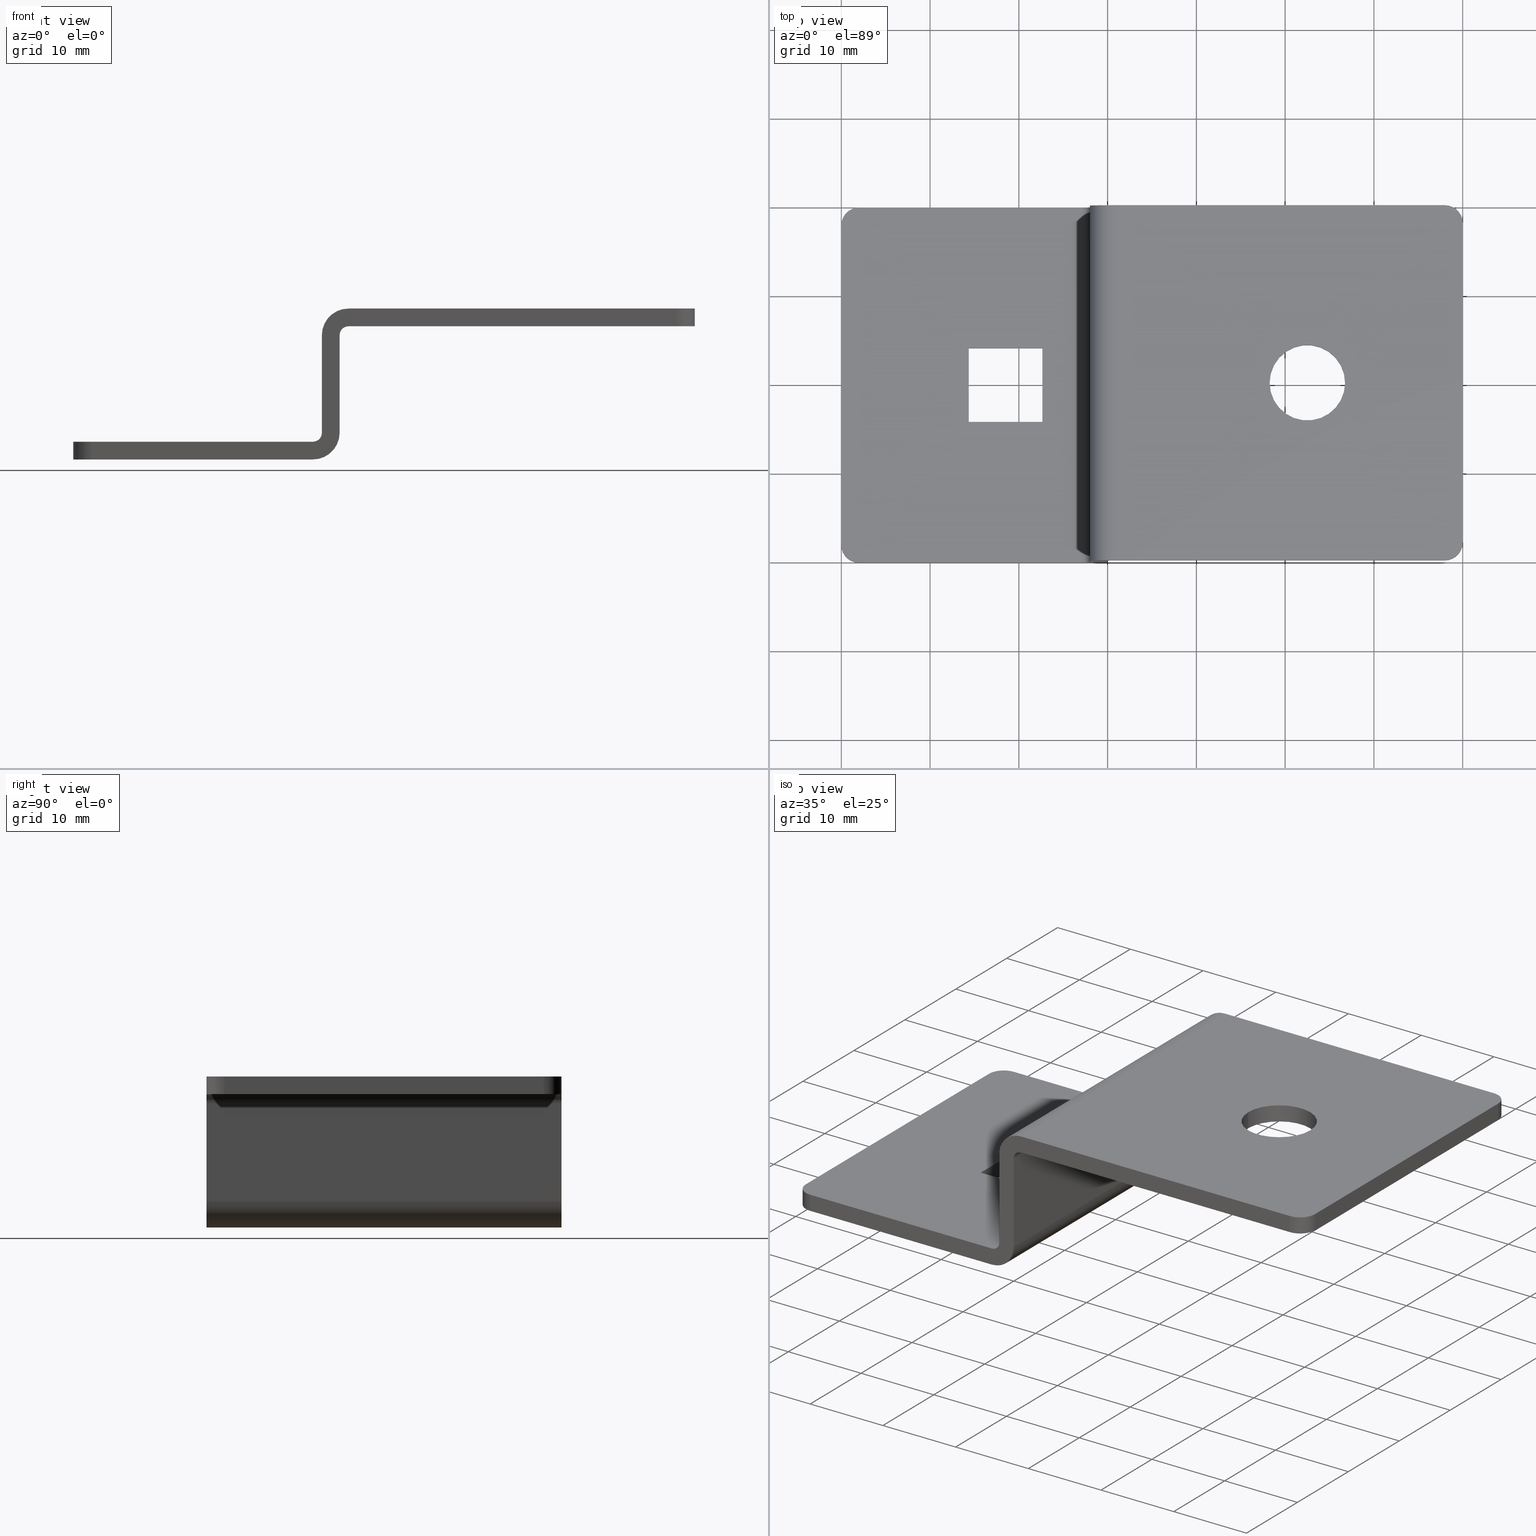
[diagram: canonical four-view strip — front | top / right | iso, engineering-drawing reading convention]
A machine part, canonical four-view strip (front | top / right | iso — engineering-drawing reading convention). The complete STEP part file that produces these views, byte-faithful:
ISO-10303-21;
HEADER;
/****************************************************************
 * Generated by software with PDE/Lib inside                    *
 * PDElib Version v4.4, created Mon 02/23/2004                  *
 * International Technegroup Inc. (www.iti-oh.com)              *
 ****************************************************************/
FILE_DESCRIPTION(('STEP AP203'),'2;1');
FILE_NAME('28.002.04.stp','2011-03-07T09:43:52',(''),(''),'2009.3.110','THINKDESIGN','');
FILE_SCHEMA(('CONFIG_CONTROL_DESIGN'));
ENDSEC;
DATA;
#2=CARTESIAN_POINT('',(-42.999999999827907,19.999999999919964,-13.999999999951855));
#3=DIRECTION('',(0.0,-1.0,6.123234E-017));
#4=DIRECTION('',(0.0,-6.123234E-017,-1.0));
#5=AXIS2_PLACEMENT_3D('',#2,#3,#4);
#6=CYLINDRICAL_SURFACE('',#5,2.999999999988035);
#7=CARTESIAN_POINT('',(-42.999999999827907,19.999999999919964,-16.999999999939888));
#8=VERTEX_POINT('',#7);
#9=CARTESIAN_POINT('',(-39.999999999839872,19.999999999919964,-13.999999999951855));
#10=VERTEX_POINT('',#9);
#11=CARTESIAN_POINT('',(-42.999999999827907,19.999999999919964,-13.999999999951855));
#12=DIRECTION('',(0.0,-1.0,6.123234E-017));
#13=DIRECTION('',(0.0,-6.123234E-017,-1.0));
#14=AXIS2_PLACEMENT_3D('',#11,#12,#13);
#15=CIRCLE('',#14,2.999999999988035);
#16=EDGE_CURVE('',#8,#10,#15,.T.);
#17=ORIENTED_EDGE('',*,*,#16,.T.);
#18=CARTESIAN_POINT('',(-39.999999999839872,-19.999999999919964,-13.999999999951852));
#19=VERTEX_POINT('',#18);
#20=CARTESIAN_POINT('',(-39.999999999839872,19.999999999919964,-13.999999999951855));
#21=DIRECTION('',(0.0,-1.0,0.0));
#22=VECTOR('',#21,39.999999999839929);
#23=LINE('',#20,#22);
#24=EDGE_CURVE('',#10,#19,#23,.T.);
#25=ORIENTED_EDGE('',*,*,#24,.T.);
#26=CARTESIAN_POINT('',(-42.999999999827907,-19.999999999919964,-16.999999999939888));
#27=VERTEX_POINT('',#26);
#28=CARTESIAN_POINT('',(-42.999999999827907,-19.999999999919964,-13.999999999951852));
#29=DIRECTION('',(0.0,-1.0,6.123234E-017));
#30=DIRECTION('',(0.0,-6.123234E-017,-1.0));
#31=AXIS2_PLACEMENT_3D('',#28,#29,#30);
#32=CIRCLE('',#31,2.999999999988035);
#33=EDGE_CURVE('',#27,#19,#32,.T.);
#34=ORIENTED_EDGE('',*,*,#33,.F.);
#35=CARTESIAN_POINT('',(-42.999999999827907,19.999999999919964,-16.999999999939888));
#36=DIRECTION('',(0.0,-1.0,0.0));
#37=VECTOR('',#36,39.999999999839929);
#38=LINE('',#35,#37);
#39=EDGE_CURVE('',#8,#27,#38,.T.);
#40=ORIENTED_EDGE('',*,*,#39,.F.);
#41=EDGE_LOOP('',(#17,#25,#34,#40));
#42=FACE_OUTER_BOUND('',#41,.T.);
#43=ADVANCED_FACE('',(#42),#6,.T.);
#44=CARTESIAN_POINT('',(-39.999999999839872,19.999999999919964,-13.999999999951855));
#45=DIRECTION('',(1.0,0.0,0.0));
#46=DIRECTION('',(0.0,0.0,1.0));
#47=AXIS2_PLACEMENT_3D('',#44,#45,#46);
#48=PLANE('',#47);
#49=CARTESIAN_POINT('',(-39.999999999839872,19.999999999919964,-2.999999999996363));
#50=VERTEX_POINT('',#49);
#51=CARTESIAN_POINT('',(-39.999999999839872,19.999999999919964,-13.999999999951855));
#52=DIRECTION('',(0.0,0.0,1.0));
#53=VECTOR('',#52,10.999999999955477);
#54=LINE('',#51,#53);
#55=EDGE_CURVE('',#10,#50,#54,.T.);
#56=ORIENTED_EDGE('',*,*,#55,.T.);
#57=CARTESIAN_POINT('',(-39.999999999839872,-19.999999999919964,-2.999999999996361));
#58=VERTEX_POINT('',#57);
#59=CARTESIAN_POINT('',(-39.999999999839872,19.999999999919964,-2.999999999996363));
#60=DIRECTION('',(0.0,-1.0,0.0));
#61=VECTOR('',#60,39.999999999839929);
#62=LINE('',#59,#61);
#63=EDGE_CURVE('',#50,#58,#62,.T.);
#64=ORIENTED_EDGE('',*,*,#63,.T.);
#65=CARTESIAN_POINT('',(-39.999999999839872,-19.999999999919964,-13.999999999951852));
#66=DIRECTION('',(0.0,0.0,1.0));
#67=VECTOR('',#66,10.999999999955477);
#68=LINE('',#65,#67);
#69=EDGE_CURVE('',#19,#58,#68,.T.);
#70=ORIENTED_EDGE('',*,*,#69,.F.);
#71=ORIENTED_EDGE('',*,*,#24,.F.);
#72=EDGE_LOOP('',(#56,#64,#70,#71));
#73=FACE_OUTER_BOUND('',#72,.T.);
#74=ADVANCED_FACE('',(#73),#48,.T.);
#75=CARTESIAN_POINT('',(-38.999999999843510,19.999999999919964,-2.999999999996363));
#76=DIRECTION('',(0.0,1.0,-6.123234E-017));
#77=DIRECTION('',(-1.0,7.498799E-033,1.224647E-016));
#78=AXIS2_PLACEMENT_3D('',#75,#76,#77);
#79=CYLINDRICAL_SURFACE('',#78,0.999999999996366);
#80=CARTESIAN_POINT('',(-38.999999999843510,19.999999999919964,-2.000000000000001));
#81=VERTEX_POINT('',#80);
#82=CARTESIAN_POINT('',(-38.999999999843510,19.999999999919964,-2.999999999996363));
#83=DIRECTION('',(0.0,1.0,-6.123234E-017));
#84=DIRECTION('',(1.0,0.0,0.0));
#85=AXIS2_PLACEMENT_3D('',#82,#83,#84);
#86=CIRCLE('',#85,0.999999999996366);
#87=EDGE_CURVE('',#50,#81,#86,.T.);
#88=ORIENTED_EDGE('',*,*,#87,.T.);
#89=CARTESIAN_POINT('',(-38.999999999843510,-19.999999999919964,-1.999999999999999));
#90=VERTEX_POINT('',#89);
#91=CARTESIAN_POINT('',(-38.999999999843510,19.999999999919964,-2.000000000000001));
#92=DIRECTION('',(0.0,-1.0,0.0));
#93=VECTOR('',#92,39.999999999839929);
#94=LINE('',#91,#93);
#95=EDGE_CURVE('',#81,#90,#94,.T.);
#96=ORIENTED_EDGE('',*,*,#95,.T.);
#97=CARTESIAN_POINT('',(-38.999999999843510,-19.999999999919964,-2.999999999996361));
#98=DIRECTION('',(0.0,1.0,-6.123234E-017));
#99=DIRECTION('',(1.0,0.0,0.0));
#100=AXIS2_PLACEMENT_3D('',#97,#98,#99);
#101=CIRCLE('',#100,0.999999999996366);
#102=EDGE_CURVE('',#58,#90,#101,.T.);
#103=ORIENTED_EDGE('',*,*,#102,.F.);
#104=ORIENTED_EDGE('',*,*,#63,.F.);
#105=EDGE_LOOP('',(#88,#96,#103,#104));
#106=FACE_OUTER_BOUND('',#105,.T.);
#107=ADVANCED_FACE('',(#106),#79,.F.);
#108=CARTESIAN_POINT('',(-38.999999999843510,19.999999999919964,-2.999999999996363));
#109=DIRECTION('',(0.0,-1.0,6.123234E-017));
#110=DIRECTION('',(1.0,0.0,0.0));
#111=AXIS2_PLACEMENT_3D('',#108,#109,#110);
#112=CYLINDRICAL_SURFACE('',#111,2.999999999996366);
#113=CARTESIAN_POINT('',(-38.999999999843510,19.999999999919964,-1.224647E-015));
#114=VERTEX_POINT('',#113);
#115=CARTESIAN_POINT('',(-41.999999999839872,19.999999999919964,-2.999999999996378));
#116=VERTEX_POINT('',#115);
#117=CARTESIAN_POINT('',(-38.999999999843510,19.999999999919964,-2.999999999996363));
#118=DIRECTION('',(0.0,-1.0,6.123234E-017));
#119=DIRECTION('',(1.0,0.0,0.0));
#120=AXIS2_PLACEMENT_3D('',#117,#118,#119);
#121=CIRCLE('',#120,2.999999999996366);
#122=EDGE_CURVE('',#114,#116,#121,.T.);
#123=ORIENTED_EDGE('',*,*,#122,.T.);
#124=CARTESIAN_POINT('',(-41.999999999839872,-19.999999999919964,-2.999999999996375));
#125=VERTEX_POINT('',#124);
#126=CARTESIAN_POINT('',(-41.999999999839872,19.999999999919964,-2.999999999996378));
#127=DIRECTION('',(0.0,-1.0,0.0));
#128=VECTOR('',#127,39.999999999839929);
#129=LINE('',#126,#128);
#130=EDGE_CURVE('',#116,#125,#129,.T.);
#131=ORIENTED_EDGE('',*,*,#130,.T.);
#132=CARTESIAN_POINT('',(-38.999999999843510,-19.999999999919964,1.224647E-015));
#133=VERTEX_POINT('',#132);
#134=CARTESIAN_POINT('',(-38.999999999843510,-19.999999999919964,-2.999999999996361));
#135=DIRECTION('',(0.0,-1.0,6.123234E-017));
#136=DIRECTION('',(1.0,0.0,0.0));
#137=AXIS2_PLACEMENT_3D('',#134,#135,#136);
#138=CIRCLE('',#137,2.999999999996366);
#139=EDGE_CURVE('',#133,#125,#138,.T.);
#140=ORIENTED_EDGE('',*,*,#139,.F.);
#141=CARTESIAN_POINT('',(-38.999999999843510,19.999999999919964,-1.224647E-015));
#142=DIRECTION('',(0.0,-1.0,0.0));
#143=VECTOR('',#142,39.999999999839929);
#144=LINE('',#141,#143);
#145=EDGE_CURVE('',#114,#133,#144,.T.);
#146=ORIENTED_EDGE('',*,*,#145,.F.);
#147=EDGE_LOOP('',(#123,#131,#140,#146));
#148=FACE_OUTER_BOUND('',#147,.T.);
#149=ADVANCED_FACE('',(#148),#112,.T.);
#150=CARTESIAN_POINT('',(-41.999999999839872,19.999999999919964,-2.999999999996378));
#151=DIRECTION('',(-1.0,0.0,0.0));
#152=DIRECTION('',(0.0,0.0,-1.0));
#153=AXIS2_PLACEMENT_3D('',#150,#151,#152);
#154=PLANE('',#153);
#155=CARTESIAN_POINT('',(-41.999999999839872,19.999999999919964,-13.999999999951855));
#156=VERTEX_POINT('',#155);
#157=CARTESIAN_POINT('',(-41.999999999839872,19.999999999919964,-2.999999999996378));
#158=DIRECTION('',(0.0,0.0,-1.0));
#159=VECTOR('',#158,10.999999999955477);
#160=LINE('',#157,#159);
#161=EDGE_CURVE('',#116,#156,#160,.T.);
#162=ORIENTED_EDGE('',*,*,#161,.T.);
#163=CARTESIAN_POINT('',(-41.999999999839872,-19.999999999919964,-13.999999999951852));
#164=VERTEX_POINT('',#163);
#165=CARTESIAN_POINT('',(-41.999999999839872,19.999999999919964,-13.999999999951855));
#166=DIRECTION('',(0.0,-1.0,0.0));
#167=VECTOR('',#166,39.999999999839929);
#168=LINE('',#165,#167);
#169=EDGE_CURVE('',#156,#164,#168,.T.);
#170=ORIENTED_EDGE('',*,*,#169,.T.);
#171=CARTESIAN_POINT('',(-41.999999999839872,-19.999999999919964,-2.999999999996375));
#172=DIRECTION('',(0.0,0.0,-1.0));
#173=VECTOR('',#172,10.999999999955477);
#174=LINE('',#171,#173);
#175=EDGE_CURVE('',#125,#164,#174,.T.);
#176=ORIENTED_EDGE('',*,*,#175,.F.);
#177=ORIENTED_EDGE('',*,*,#130,.F.);
#178=EDGE_LOOP('',(#162,#170,#176,#177));
#179=FACE_OUTER_BOUND('',#178,.T.);
#180=ADVANCED_FACE('',(#179),#154,.T.);
#181=CARTESIAN_POINT('',(-42.999999999827907,19.999999999919964,-13.999999999951855));
#182=DIRECTION('',(0.0,1.0,-6.123234E-017));
#183=DIRECTION('',(1.0,-1.232595E-032,-6.123234E-017));
#184=AXIS2_PLACEMENT_3D('',#181,#182,#183);
#185=CYLINDRICAL_SURFACE('',#184,0.999999999988034);
#186=CARTESIAN_POINT('',(-42.999999999827878,19.999999999919964,-14.999999999939890));
#187=VERTEX_POINT('',#186);
#188=CARTESIAN_POINT('',(-42.999999999827907,19.999999999919964,-13.999999999951855));
#189=DIRECTION('',(0.0,1.0,-6.123234E-017));
#190=DIRECTION('',(0.0,-6.123234E-017,-1.0));
#191=AXIS2_PLACEMENT_3D('',#188,#189,#190);
#192=CIRCLE('',#191,0.999999999988034);
#193=EDGE_CURVE('',#156,#187,#192,.T.);
#194=ORIENTED_EDGE('',*,*,#193,.T.);
#195=CARTESIAN_POINT('',(-42.999999999827878,-19.999999999919964,-14.999999999939886));
#196=VERTEX_POINT('',#195);
#197=CARTESIAN_POINT('',(-42.999999999827878,19.999999999919964,-14.999999999939890));
#198=DIRECTION('',(0.0,-1.0,0.0));
#199=VECTOR('',#198,39.999999999839929);
#200=LINE('',#197,#199);
#201=EDGE_CURVE('',#187,#196,#200,.T.);
#202=ORIENTED_EDGE('',*,*,#201,.T.);
#203=CARTESIAN_POINT('',(-42.999999999827907,-19.999999999919964,-13.999999999951852));
#204=DIRECTION('',(0.0,1.0,-6.123234E-017));
#205=DIRECTION('',(0.0,-6.123234E-017,-1.0));
#206=AXIS2_PLACEMENT_3D('',#203,#204,#205);
#207=CIRCLE('',#206,0.999999999988034);
#208=EDGE_CURVE('',#164,#196,#207,.T.);
#209=ORIENTED_EDGE('',*,*,#208,.F.);
#210=ORIENTED_EDGE('',*,*,#169,.F.);
#211=EDGE_LOOP('',(#194,#202,#209,#210));
#212=FACE_OUTER_BOUND('',#211,.T.);
#213=ADVANCED_FACE('',(#212),#185,.F.);
#214=CARTESIAN_POINT('',(-69.999999999720060,19.999999999919964,-16.999999999939888));
#215=DIRECTION('',(0.0,0.0,-1.0));
#216=DIRECTION('',(1.0,0.0,0.0));
#217=AXIS2_PLACEMENT_3D('',#214,#215,#216);
#218=PLANE('',#217);
#219=CARTESIAN_POINT('',(-67.999999999720060,19.999999999919964,-16.999999999939888));
#220=VERTEX_POINT('',#219);
#221=CARTESIAN_POINT('',(-67.999999999720060,19.999999999919964,-16.999999999939888));
#222=DIRECTION('',(1.0,0.0,0.0));
#223=VECTOR('',#222,24.999999999892182);
#224=LINE('',#221,#223);
#225=EDGE_CURVE('',#220,#8,#224,.T.);
#226=ORIENTED_EDGE('',*,*,#225,.T.);
#227=ORIENTED_EDGE('',*,*,#39,.T.);
#228=CARTESIAN_POINT('',(-67.999999999720060,-19.999999999919964,-16.999999999939888));
#229=VERTEX_POINT('',#228);
#230=CARTESIAN_POINT('',(-67.999999999720060,-19.999999999919964,-16.999999999939888));
#231=DIRECTION('',(1.0,0.0,0.0));
#232=VECTOR('',#231,24.999999999892182);
#233=LINE('',#230,#232);
#234=EDGE_CURVE('',#229,#27,#233,.T.);
#235=ORIENTED_EDGE('',*,*,#234,.F.);
#236=CARTESIAN_POINT('',(-69.999999999720060,-17.999999999919964,-16.999999999939888));
#237=VERTEX_POINT('',#236);
#238=CARTESIAN_POINT('',(-67.999999999720060,-17.999999999919964,-16.999999999939888));
#239=DIRECTION('',(0.0,6.123234E-017,1.0));
#240=DIRECTION('',(-1.0,0.0,0.0));
#241=AXIS2_PLACEMENT_3D('',#238,#239,#240);
#242=CIRCLE('',#241,2.0);
#243=EDGE_CURVE('',#237,#229,#242,.T.);
#244=ORIENTED_EDGE('',*,*,#243,.F.);
#245=CARTESIAN_POINT('',(-69.999999999720060,17.999999999919964,-16.999999999939888));
#246=VERTEX_POINT('',#245);
#247=CARTESIAN_POINT('',(-69.999999999720060,17.999999999919964,-16.999999999939888));
#248=DIRECTION('',(0.0,-1.0,0.0));
#249=VECTOR('',#248,35.999999999839929);
#250=LINE('',#247,#249);
#251=EDGE_CURVE('',#246,#237,#250,.T.);
#252=ORIENTED_EDGE('',*,*,#251,.F.);
#253=CARTESIAN_POINT('',(-67.999999999720060,17.999999999919964,-16.999999999939888));
#254=DIRECTION('',(0.0,-6.123234E-017,-1.0));
#255=DIRECTION('',(-1.0,0.0,0.0));
#256=AXIS2_PLACEMENT_3D('',#253,#254,#255);
#257=CIRCLE('',#256,2.0);
#258=EDGE_CURVE('',#246,#220,#257,.T.);
#259=ORIENTED_EDGE('',*,*,#258,.T.);
#260=EDGE_LOOP('',(#226,#227,#235,#244,#252,#259));
#261=FACE_OUTER_BOUND('',#260,.T.);
#262=CARTESIAN_POINT('',(-55.649999999777322,4.146153846137167,-16.999999999939888));
#263=VERTEX_POINT('',#262);
#264=CARTESIAN_POINT('',(-55.649999999777322,-4.153846153829364,-16.999999999939888));
#265=VERTEX_POINT('',#264);
#266=CARTESIAN_POINT('',(-55.649999999777322,4.146153846137167,-16.999999999939888));
#267=DIRECTION('',(0.0,-1.0,0.0));
#268=VECTOR('',#267,8.299999999966531);
#269=LINE('',#266,#268);
#270=EDGE_CURVE('',#263,#265,#269,.T.);
#271=ORIENTED_EDGE('',*,*,#270,.T.);
#272=CARTESIAN_POINT('',(-47.349999999810507,-4.153846153829364,-16.999999999939888));
#273=VERTEX_POINT('',#272);
#274=CARTESIAN_POINT('',(-55.649999999777322,-4.153846153829364,-16.999999999939888));
#275=DIRECTION('',(1.0,0.0,0.0));
#276=VECTOR('',#275,8.299999999966815);
#277=LINE('',#274,#276);
#278=EDGE_CURVE('',#265,#273,#277,.T.);
#279=ORIENTED_EDGE('',*,*,#278,.T.);
#280=CARTESIAN_POINT('',(-47.349999999810507,4.146153846137167,-16.999999999939888));
#281=VERTEX_POINT('',#280);
#282=CARTESIAN_POINT('',(-47.349999999810507,-4.153846153829364,-16.999999999939888));
#283=DIRECTION('',(0.0,1.0,0.0));
#284=VECTOR('',#283,8.299999999966531);
#285=LINE('',#282,#284);
#286=EDGE_CURVE('',#273,#281,#285,.T.);
#287=ORIENTED_EDGE('',*,*,#286,.T.);
#288=CARTESIAN_POINT('',(-55.649999999777322,4.146153846137167,-16.999999999939888));
#289=DIRECTION('',(1.0,0.0,0.0));
#290=VECTOR('',#289,8.299999999966815);
#291=LINE('',#288,#290);
#292=EDGE_CURVE('',#263,#281,#291,.T.);
#293=ORIENTED_EDGE('',*,*,#292,.F.);
#294=EDGE_LOOP('',(#271,#279,#287,#293));
#295=FACE_BOUND('',#294,.T.);
#296=ADVANCED_FACE('',(#261,#295),#218,.T.);
#297=CARTESIAN_POINT('',(-67.999999999720060,17.999999999919964,-14.999999999939890));
#298=DIRECTION('',(0.0,-6.123234E-017,-1.0));
#299=DIRECTION('',(-1.0,0.0,0.0));
#300=AXIS2_PLACEMENT_3D('',#297,#298,#299);
#301=CYLINDRICAL_SURFACE('',#300,2.0);
#302=CARTESIAN_POINT('',(-69.999999999720060,17.999999999919964,-14.999999999939890));
#303=VERTEX_POINT('',#302);
#304=CARTESIAN_POINT('',(-67.999999999720060,19.999999999919964,-14.999999999939890));
#305=VERTEX_POINT('',#304);
#306=CARTESIAN_POINT('',(-67.999999999720060,17.999999999919964,-14.999999999939890));
#307=DIRECTION('',(0.0,-6.123234E-017,-1.0));
#308=DIRECTION('',(-1.0,0.0,0.0));
#309=AXIS2_PLACEMENT_3D('',#306,#307,#308);
#310=CIRCLE('',#309,2.0);
#311=EDGE_CURVE('',#303,#305,#310,.T.);
#312=ORIENTED_EDGE('',*,*,#311,.T.);
#313=CARTESIAN_POINT('',(-67.999999999720060,19.999999999919964,-14.999999999939890));
#314=DIRECTION('',(0.0,0.0,-1.0));
#315=VECTOR('',#314,1.999999999999998);
#316=LINE('',#313,#315);
#317=EDGE_CURVE('',#305,#220,#316,.T.);
#318=ORIENTED_EDGE('',*,*,#317,.T.);
#319=ORIENTED_EDGE('',*,*,#258,.F.);
#320=CARTESIAN_POINT('',(-69.999999999720060,17.999999999919964,-14.999999999939890));
#321=DIRECTION('',(0.0,0.0,-1.0));
#322=VECTOR('',#321,1.999999999999998);
#323=LINE('',#320,#322);
#324=EDGE_CURVE('',#303,#246,#323,.T.);
#325=ORIENTED_EDGE('',*,*,#324,.F.);
#326=EDGE_LOOP('',(#312,#318,#319,#325));
#327=FACE_OUTER_BOUND('',#326,.T.);
#328=ADVANCED_FACE('',(#327),#301,.T.);
#329=CARTESIAN_POINT('',(-42.999999999827878,19.999999999919964,-14.999999999939890));
#330=DIRECTION('',(0.0,0.0,1.0));
#331=DIRECTION('',(-1.0,0.0,0.0));
#332=AXIS2_PLACEMENT_3D('',#329,#330,#331);
#333=PLANE('',#332);
#334=CARTESIAN_POINT('',(-42.999999999827878,19.999999999919964,-14.999999999939890));
#335=DIRECTION('',(-1.0,0.0,0.0));
#336=VECTOR('',#335,24.999999999892182);
#337=LINE('',#334,#336);
#338=EDGE_CURVE('',#187,#305,#337,.T.);
#339=ORIENTED_EDGE('',*,*,#338,.T.);
#340=ORIENTED_EDGE('',*,*,#311,.F.);
#341=CARTESIAN_POINT('',(-69.999999999720060,-17.999999999919964,-14.999999999939886));
#342=VERTEX_POINT('',#341);
#343=CARTESIAN_POINT('',(-69.999999999720060,17.999999999919964,-14.999999999939890));
#344=DIRECTION('',(0.0,-1.0,0.0));
#345=VECTOR('',#344,35.999999999839929);
#346=LINE('',#343,#345);
#347=EDGE_CURVE('',#303,#342,#346,.T.);
#348=ORIENTED_EDGE('',*,*,#347,.T.);
#349=CARTESIAN_POINT('',(-67.999999999720060,-19.999999999919964,-14.999999999939886));
#350=VERTEX_POINT('',#349);
#351=CARTESIAN_POINT('',(-67.999999999720060,-17.999999999919964,-14.999999999939886));
#352=DIRECTION('',(0.0,6.123234E-017,1.0));
#353=DIRECTION('',(-1.0,0.0,0.0));
#354=AXIS2_PLACEMENT_3D('',#351,#352,#353);
#355=CIRCLE('',#354,2.0);
#356=EDGE_CURVE('',#342,#350,#355,.T.);
#357=ORIENTED_EDGE('',*,*,#356,.T.);
#358=CARTESIAN_POINT('',(-42.999999999827878,-19.999999999919964,-14.999999999939886));
#359=DIRECTION('',(-1.0,0.0,0.0));
#360=VECTOR('',#359,24.999999999892182);
#361=LINE('',#358,#360);
#362=EDGE_CURVE('',#196,#350,#361,.T.);
#363=ORIENTED_EDGE('',*,*,#362,.F.);
#364=ORIENTED_EDGE('',*,*,#201,.F.);
#365=EDGE_LOOP('',(#339,#340,#348,#357,#363,#364));
#366=FACE_OUTER_BOUND('',#365,.T.);
#367=CARTESIAN_POINT('',(-55.649999999777322,4.146153846137167,-14.999999999939888));
#368=VERTEX_POINT('',#367);
#369=CARTESIAN_POINT('',(-47.349999999810507,4.146153846137167,-14.999999999939888));
#370=VERTEX_POINT('',#369);
#371=CARTESIAN_POINT('',(-55.649999999777322,4.146153846137167,-14.999999999939888));
#372=DIRECTION('',(1.0,0.0,0.0));
#373=VECTOR('',#372,8.299999999966815);
#374=LINE('',#371,#373);
#375=EDGE_CURVE('',#368,#370,#374,.T.);
#376=ORIENTED_EDGE('',*,*,#375,.T.);
#377=CARTESIAN_POINT('',(-47.349999999810507,-4.153846153829364,-14.999999999939888));
#378=VERTEX_POINT('',#377);
#379=CARTESIAN_POINT('',(-47.349999999810507,-4.153846153829364,-14.999999999939888));
#380=DIRECTION('',(0.0,1.0,0.0));
#381=VECTOR('',#380,8.299999999966531);
#382=LINE('',#379,#381);
#383=EDGE_CURVE('',#378,#370,#382,.T.);
#384=ORIENTED_EDGE('',*,*,#383,.F.);
#385=CARTESIAN_POINT('',(-55.649999999777322,-4.153846153829364,-14.999999999939888));
#386=VERTEX_POINT('',#385);
#387=CARTESIAN_POINT('',(-55.649999999777322,-4.153846153829364,-14.999999999939888));
#388=DIRECTION('',(1.0,0.0,0.0));
#389=VECTOR('',#388,8.299999999966815);
#390=LINE('',#387,#389);
#391=EDGE_CURVE('',#386,#378,#390,.T.);
#392=ORIENTED_EDGE('',*,*,#391,.F.);
#393=CARTESIAN_POINT('',(-55.649999999777322,4.146153846137167,-14.999999999939888));
#394=DIRECTION('',(0.0,-1.0,0.0));
#395=VECTOR('',#394,8.299999999966531);
#396=LINE('',#393,#395);
#397=EDGE_CURVE('',#368,#386,#396,.T.);
#398=ORIENTED_EDGE('',*,*,#397,.F.);
#399=EDGE_LOOP('',(#376,#384,#392,#398));
#400=FACE_BOUND('',#399,.T.);
#401=ADVANCED_FACE('',(#366,#400),#333,.T.);
#402=CARTESIAN_POINT('',(0.0,19.999999999919964,-1.224647E-015));
#403=DIRECTION('',(0.0,0.0,1.0));
#404=DIRECTION('',(-1.0,0.0,0.0));
#405=AXIS2_PLACEMENT_3D('',#402,#403,#404);
#406=PLANE('',#405);
#407=CARTESIAN_POINT('',(-2.0,19.999999999919964,-1.224647E-015));
#408=VERTEX_POINT('',#407);
#409=CARTESIAN_POINT('',(-2.0,19.999999999919964,-1.224647E-015));
#410=DIRECTION('',(-1.0,0.0,0.0));
#411=VECTOR('',#410,36.999999999843510);
#412=LINE('',#409,#411);
#413=EDGE_CURVE('',#408,#114,#412,.T.);
#414=ORIENTED_EDGE('',*,*,#413,.T.);
#415=ORIENTED_EDGE('',*,*,#145,.T.);
#416=CARTESIAN_POINT('',(-2.0,-19.999999999919964,1.224647E-015));
#417=VERTEX_POINT('',#416);
#418=CARTESIAN_POINT('',(-2.0,-19.999999999919964,1.224647E-015));
#419=DIRECTION('',(-1.0,0.0,0.0));
#420=VECTOR('',#419,36.999999999843510);
#421=LINE('',#418,#420);
#422=EDGE_CURVE('',#417,#133,#421,.T.);
#423=ORIENTED_EDGE('',*,*,#422,.F.);
#424=CARTESIAN_POINT('',(0.0,-17.999999999919964,1.102182E-015));
#425=VERTEX_POINT('',#424);
#426=CARTESIAN_POINT('',(-2.0,-17.999999999919964,1.102182E-015));
#427=DIRECTION('',(0.0,-6.123234E-017,-1.0));
#428=DIRECTION('',(1.0,0.0,0.0));
#429=AXIS2_PLACEMENT_3D('',#426,#427,#428);
#430=CIRCLE('',#429,2.0);
#431=EDGE_CURVE('',#425,#417,#430,.T.);
#432=ORIENTED_EDGE('',*,*,#431,.F.);
#433=CARTESIAN_POINT('',(0.0,17.999999999919964,-1.102182E-015));
#434=VERTEX_POINT('',#433);
#435=CARTESIAN_POINT('',(0.0,17.999999999919964,-1.102182E-015));
#436=DIRECTION('',(0.0,-1.0,0.0));
#437=VECTOR('',#436,35.999999999839929);
#438=LINE('',#435,#437);
#439=EDGE_CURVE('',#434,#425,#438,.T.);
#440=ORIENTED_EDGE('',*,*,#439,.F.);
#441=CARTESIAN_POINT('',(-2.0,17.999999999919964,-1.102182E-015));
#442=DIRECTION('',(0.0,6.123234E-017,1.0));
#443=DIRECTION('',(1.0,0.0,0.0));
#444=AXIS2_PLACEMENT_3D('',#441,#442,#443);
#445=CIRCLE('',#444,2.0);
#446=EDGE_CURVE('',#434,#408,#445,.T.);
#447=ORIENTED_EDGE('',*,*,#446,.T.);
#448=EDGE_LOOP('',(#414,#415,#423,#432,#440,#447));
#449=FACE_OUTER_BOUND('',#448,.T.);
#450=CARTESIAN_POINT('',(-13.249999999946965,0.0,0.0));
#451=VERTEX_POINT('',#450);
#452=CARTESIAN_POINT('',(-21.749999999912973,0.0,0.0));
#453=VERTEX_POINT('',#452);
#454=CARTESIAN_POINT('',(-17.499999999929969,0.0,0.0));
#455=DIRECTION('',(0.0,6.123234E-017,1.0));
#456=DIRECTION('',(-1.0,0.0,0.0));
#457=AXIS2_PLACEMENT_3D('',#454,#455,#456);
#458=CIRCLE('',#457,4.249999999983004);
#459=EDGE_CURVE('',#451,#453,#458,.T.);
#460=ORIENTED_EDGE('',*,*,#459,.F.);
#461=CARTESIAN_POINT('',(-17.499999999929969,0.0,0.0));
#462=DIRECTION('',(0.0,6.123234E-017,1.0));
#463=DIRECTION('',(-1.0,0.0,0.0));
#464=AXIS2_PLACEMENT_3D('',#461,#462,#463);
#465=CIRCLE('',#464,4.249999999983004);
#466=EDGE_CURVE('',#453,#451,#465,.T.);
#467=ORIENTED_EDGE('',*,*,#466,.F.);
#468=EDGE_LOOP('',(#460,#467));
#469=FACE_BOUND('',#468,.T.);
#470=ADVANCED_FACE('',(#449,#469),#406,.T.);
#471=CARTESIAN_POINT('',(-2.0,17.999999999919964,-2.000000000000001));
#472=DIRECTION('',(0.0,6.123234E-017,1.0));
#473=DIRECTION('',(1.0,0.0,0.0));
#474=AXIS2_PLACEMENT_3D('',#471,#472,#473);
#475=CYLINDRICAL_SURFACE('',#474,2.0);
#476=CARTESIAN_POINT('',(0.0,17.999999999919964,-2.000000000000001));
#477=VERTEX_POINT('',#476);
#478=CARTESIAN_POINT('',(-2.0,19.999999999919964,-2.000000000000001));
#479=VERTEX_POINT('',#478);
#480=CARTESIAN_POINT('',(-2.0,17.999999999919964,-2.000000000000001));
#481=DIRECTION('',(0.0,6.123234E-017,1.0));
#482=DIRECTION('',(1.0,0.0,0.0));
#483=AXIS2_PLACEMENT_3D('',#480,#481,#482);
#484=CIRCLE('',#483,2.0);
#485=EDGE_CURVE('',#477,#479,#484,.T.);
#486=ORIENTED_EDGE('',*,*,#485,.T.);
#487=CARTESIAN_POINT('',(-2.0,19.999999999919964,-2.000000000000001));
#488=DIRECTION('',(0.0,0.0,1.0));
#489=VECTOR('',#488,2.0);
#490=LINE('',#487,#489);
#491=EDGE_CURVE('',#479,#408,#490,.T.);
#492=ORIENTED_EDGE('',*,*,#491,.T.);
#493=ORIENTED_EDGE('',*,*,#446,.F.);
#494=CARTESIAN_POINT('',(0.0,17.999999999919964,-2.000000000000001));
#495=DIRECTION('',(0.0,0.0,1.0));
#496=VECTOR('',#495,2.0);
#497=LINE('',#494,#496);
#498=EDGE_CURVE('',#477,#434,#497,.T.);
#499=ORIENTED_EDGE('',*,*,#498,.F.);
#500=EDGE_LOOP('',(#486,#492,#493,#499));
#501=FACE_OUTER_BOUND('',#500,.T.);
#502=ADVANCED_FACE('',(#501),#475,.T.);
#503=CARTESIAN_POINT('',(-38.999999999843510,19.999999999919964,-2.000000000000001));
#504=DIRECTION('',(0.0,0.0,-1.0));
#505=DIRECTION('',(1.0,0.0,0.0));
#506=AXIS2_PLACEMENT_3D('',#503,#504,#505);
#507=PLANE('',#506);
#508=CARTESIAN_POINT('',(-38.999999999843510,19.999999999919964,-2.000000000000001));
#509=DIRECTION('',(1.0,0.0,0.0));
#510=VECTOR('',#509,36.999999999843510);
#511=LINE('',#508,#510);
#512=EDGE_CURVE('',#81,#479,#511,.T.);
#513=ORIENTED_EDGE('',*,*,#512,.T.);
#514=ORIENTED_EDGE('',*,*,#485,.F.);
#515=CARTESIAN_POINT('',(0.0,-17.999999999919964,-1.999999999999999));
#516=VERTEX_POINT('',#515);
#517=CARTESIAN_POINT('',(0.0,17.999999999919964,-2.000000000000001));
#518=DIRECTION('',(0.0,-1.0,0.0));
#519=VECTOR('',#518,35.999999999839929);
#520=LINE('',#517,#519);
#521=EDGE_CURVE('',#477,#516,#520,.T.);
#522=ORIENTED_EDGE('',*,*,#521,.T.);
#523=CARTESIAN_POINT('',(-2.0,-19.999999999919964,-1.999999999999999));
#524=VERTEX_POINT('',#523);
#525=CARTESIAN_POINT('',(-2.0,-17.999999999919964,-1.999999999999999));
#526=DIRECTION('',(0.0,-6.123234E-017,-1.0));
#527=DIRECTION('',(1.0,0.0,0.0));
#528=AXIS2_PLACEMENT_3D('',#525,#526,#527);
#529=CIRCLE('',#528,2.0);
#530=EDGE_CURVE('',#516,#524,#529,.T.);
#531=ORIENTED_EDGE('',*,*,#530,.T.);
#532=CARTESIAN_POINT('',(-38.999999999843510,-19.999999999919964,-1.999999999999999));
#533=DIRECTION('',(1.0,0.0,0.0));
#534=VECTOR('',#533,36.999999999843510);
#535=LINE('',#532,#534);
#536=EDGE_CURVE('',#90,#524,#535,.T.);
#537=ORIENTED_EDGE('',*,*,#536,.F.);
#538=ORIENTED_EDGE('',*,*,#95,.F.);
#539=EDGE_LOOP('',(#513,#514,#522,#531,#537,#538));
#540=FACE_OUTER_BOUND('',#539,.T.);
#541=CARTESIAN_POINT('',(-21.749999999912973,-1.224647E-016,-2.0));
#542=VERTEX_POINT('',#541);
#543=CARTESIAN_POINT('',(-13.249999999946965,-1.224647E-016,-2.0));
#544=VERTEX_POINT('',#543);
#545=CARTESIAN_POINT('',(-17.499999999929969,-1.224647E-016,-2.0));
#546=DIRECTION('',(0.0,6.123234E-017,1.0));
#547=DIRECTION('',(-1.0,0.0,0.0));
#548=AXIS2_PLACEMENT_3D('',#545,#546,#547);
#549=CIRCLE('',#548,4.249999999983004);
#550=EDGE_CURVE('',#542,#544,#549,.T.);
#551=ORIENTED_EDGE('',*,*,#550,.T.);
#552=CARTESIAN_POINT('',(-17.499999999929969,-1.224647E-016,-2.0));
#553=DIRECTION('',(0.0,6.123234E-017,1.0));
#554=DIRECTION('',(-1.0,0.0,0.0));
#555=AXIS2_PLACEMENT_3D('',#552,#553,#554);
#556=CIRCLE('',#555,4.249999999983004);
#557=EDGE_CURVE('',#544,#542,#556,.T.);
#558=ORIENTED_EDGE('',*,*,#557,.T.);
#559=EDGE_LOOP('',(#551,#558));
#560=FACE_BOUND('',#559,.T.);
#561=ADVANCED_FACE('',(#540,#560),#507,.T.);
#562=CARTESIAN_POINT('',(-2.0,-17.999999999919964,-1.999999999999999));
#563=DIRECTION('',(0.0,-6.123234E-017,-1.0));
#564=DIRECTION('',(1.0,0.0,0.0));
#565=AXIS2_PLACEMENT_3D('',#562,#563,#564);
#566=CYLINDRICAL_SURFACE('',#565,2.0);
#567=CARTESIAN_POINT('',(0.0,-17.999999999919964,-1.999999999999999));
#568=DIRECTION('',(0.0,0.0,1.0));
#569=VECTOR('',#568,2.0);
#570=LINE('',#567,#569);
#571=EDGE_CURVE('',#516,#425,#570,.T.);
#572=ORIENTED_EDGE('',*,*,#571,.T.);
#573=ORIENTED_EDGE('',*,*,#431,.T.);
#574=CARTESIAN_POINT('',(-2.0,-19.999999999919964,-1.999999999999999));
#575=DIRECTION('',(0.0,0.0,1.0));
#576=VECTOR('',#575,2.0);
#577=LINE('',#574,#576);
#578=EDGE_CURVE('',#524,#417,#577,.T.);
#579=ORIENTED_EDGE('',*,*,#578,.F.);
#580=ORIENTED_EDGE('',*,*,#530,.F.);
#581=EDGE_LOOP('',(#572,#573,#579,#580));
#582=FACE_OUTER_BOUND('',#581,.T.);
#583=ADVANCED_FACE('',(#582),#566,.T.);
#584=CARTESIAN_POINT('',(-67.999999999720060,-17.999999999919964,-14.999999999939886));
#585=DIRECTION('',(0.0,6.123234E-017,1.0));
#586=DIRECTION('',(-1.0,0.0,0.0));
#587=AXIS2_PLACEMENT_3D('',#584,#585,#586);
#588=CYLINDRICAL_SURFACE('',#587,2.0);
#589=CARTESIAN_POINT('',(-69.999999999720060,-17.999999999919964,-14.999999999939886));
#590=DIRECTION('',(0.0,0.0,-1.0));
#591=VECTOR('',#590,2.000000000000002);
#592=LINE('',#589,#591);
#593=EDGE_CURVE('',#342,#237,#592,.T.);
#594=ORIENTED_EDGE('',*,*,#593,.T.);
#595=ORIENTED_EDGE('',*,*,#243,.T.);
#596=CARTESIAN_POINT('',(-67.999999999720060,-19.999999999919964,-14.999999999939886));
#597=DIRECTION('',(0.0,0.0,-1.0));
#598=VECTOR('',#597,2.000000000000002);
#599=LINE('',#596,#598);
#600=EDGE_CURVE('',#350,#229,#599,.T.);
#601=ORIENTED_EDGE('',*,*,#600,.F.);
#602=ORIENTED_EDGE('',*,*,#356,.F.);
#603=EDGE_LOOP('',(#594,#595,#601,#602));
#604=FACE_OUTER_BOUND('',#603,.T.);
#605=ADVANCED_FACE('',(#604),#588,.T.);
#606=CARTESIAN_POINT('',(-77.000004724124679,19.999999999919964,1.700004724583805));
#607=DIRECTION('',(0.0,-1.0,0.0));
#608=DIRECTION('',(0.0,0.0,-1.0));
#609=AXIS2_PLACEMENT_3D('',#606,#607,#608);
#610=PLANE('',#609);
#611=ORIENTED_EDGE('',*,*,#225,.F.);
#612=ORIENTED_EDGE('',*,*,#317,.F.);
#613=ORIENTED_EDGE('',*,*,#338,.F.);
#614=ORIENTED_EDGE('',*,*,#193,.F.);
#615=ORIENTED_EDGE('',*,*,#161,.F.);
#616=ORIENTED_EDGE('',*,*,#122,.F.);
#617=ORIENTED_EDGE('',*,*,#413,.F.);
#618=ORIENTED_EDGE('',*,*,#491,.F.);
#619=ORIENTED_EDGE('',*,*,#512,.F.);
#620=ORIENTED_EDGE('',*,*,#87,.F.);
#621=ORIENTED_EDGE('',*,*,#55,.F.);
#622=ORIENTED_EDGE('',*,*,#16,.F.);
#623=EDGE_LOOP('',(#611,#612,#613,#614,#615,#616,#617,#618,#619,#620,#621,#622));
#624=FACE_OUTER_BOUND('',#623,.T.);
#625=ADVANCED_FACE('',(#624),#610,.F.);
#626=CARTESIAN_POINT('',(-69.999999999720060,19.999999999919964,-14.999999999939890));
#627=DIRECTION('',(-1.0,0.0,0.0));
#628=DIRECTION('',(0.0,0.0,-1.0));
#629=AXIS2_PLACEMENT_3D('',#626,#627,#628);
#630=PLANE('',#629);
#631=ORIENTED_EDGE('',*,*,#347,.F.);
#632=ORIENTED_EDGE('',*,*,#324,.T.);
#633=ORIENTED_EDGE('',*,*,#251,.T.);
#634=ORIENTED_EDGE('',*,*,#593,.F.);
#635=EDGE_LOOP('',(#631,#632,#633,#634));
#636=FACE_OUTER_BOUND('',#635,.T.);
#637=ADVANCED_FACE('',(#636),#630,.T.);
#638=CARTESIAN_POINT('',(0.0,19.999999999919964,-2.000000000000001));
#639=DIRECTION('',(1.0,0.0,0.0));
#640=DIRECTION('',(0.0,0.0,1.0));
#641=AXIS2_PLACEMENT_3D('',#638,#639,#640);
#642=PLANE('',#641);
#643=ORIENTED_EDGE('',*,*,#521,.F.);
#644=ORIENTED_EDGE('',*,*,#498,.T.);
#645=ORIENTED_EDGE('',*,*,#439,.T.);
#646=ORIENTED_EDGE('',*,*,#571,.F.);
#647=EDGE_LOOP('',(#643,#644,#645,#646));
#648=FACE_OUTER_BOUND('',#647,.T.);
#649=ADVANCED_FACE('',(#648),#642,.T.);
#650=CARTESIAN_POINT('',(-77.000004724124679,-19.999999999919964,1.700004724583808));
#651=DIRECTION('',(0.0,-1.0,0.0));
#652=DIRECTION('',(0.0,0.0,-1.0));
#653=AXIS2_PLACEMENT_3D('',#650,#651,#652);
#654=PLANE('',#653);
#655=ORIENTED_EDGE('',*,*,#33,.T.);
#656=ORIENTED_EDGE('',*,*,#69,.T.);
#657=ORIENTED_EDGE('',*,*,#102,.T.);
#658=ORIENTED_EDGE('',*,*,#536,.T.);
#659=ORIENTED_EDGE('',*,*,#578,.T.);
#660=ORIENTED_EDGE('',*,*,#422,.T.);
#661=ORIENTED_EDGE('',*,*,#139,.T.);
#662=ORIENTED_EDGE('',*,*,#175,.T.);
#663=ORIENTED_EDGE('',*,*,#208,.T.);
#664=ORIENTED_EDGE('',*,*,#362,.T.);
#665=ORIENTED_EDGE('',*,*,#600,.T.);
#666=ORIENTED_EDGE('',*,*,#234,.T.);
#667=EDGE_LOOP('',(#655,#656,#657,#658,#659,#660,#661,#662,#663,#664,#665,#666));
#668=FACE_OUTER_BOUND('',#667,.T.);
#669=ADVANCED_FACE('',(#668),#654,.T.);
#670=CARTESIAN_POINT('',(-55.649999999777322,4.146153846137166,-33.700029373108833));
#671=DIRECTION('',(-1.0,0.0,0.0));
#672=DIRECTION('',(0.0,-1.0,0.0));
#673=AXIS2_PLACEMENT_3D('',#670,#671,#672);
#674=PLANE('',#673);
#675=CARTESIAN_POINT('',(-55.649999999777322,4.146153846137167,-16.999999999939888));
#676=DIRECTION('',(0.0,0.0,1.0));
#677=VECTOR('',#676,2.0);
#678=LINE('',#675,#677);
#679=EDGE_CURVE('',#263,#368,#678,.T.);
#680=ORIENTED_EDGE('',*,*,#679,.T.);
#681=ORIENTED_EDGE('',*,*,#397,.T.);
#682=CARTESIAN_POINT('',(-55.649999999777322,-4.153846153829364,-16.999999999939888));
#683=DIRECTION('',(0.0,0.0,1.0));
#684=VECTOR('',#683,2.0);
#685=LINE('',#682,#684);
#686=EDGE_CURVE('',#265,#386,#685,.T.);
#687=ORIENTED_EDGE('',*,*,#686,.F.);
#688=ORIENTED_EDGE('',*,*,#270,.F.);
#689=EDGE_LOOP('',(#680,#681,#687,#688));
#690=FACE_OUTER_BOUND('',#689,.T.);
#691=ADVANCED_FACE('',(#690),#674,.F.);
#692=CARTESIAN_POINT('',(-55.649999999777322,-4.153846153829365,-33.700029373108833));
#693=DIRECTION('',(0.0,-1.0,0.0));
#694=DIRECTION('',(1.0,0.0,0.0));
#695=AXIS2_PLACEMENT_3D('',#692,#693,#694);
#696=PLANE('',#695);
#697=ORIENTED_EDGE('',*,*,#686,.T.);
#698=ORIENTED_EDGE('',*,*,#391,.T.);
#699=CARTESIAN_POINT('',(-47.349999999810507,-4.153846153829364,-16.999999999939888));
#700=DIRECTION('',(0.0,0.0,1.0));
#701=VECTOR('',#700,2.0);
#702=LINE('',#699,#701);
#703=EDGE_CURVE('',#273,#378,#702,.T.);
#704=ORIENTED_EDGE('',*,*,#703,.F.);
#705=ORIENTED_EDGE('',*,*,#278,.F.);
#706=EDGE_LOOP('',(#697,#698,#704,#705));
#707=FACE_OUTER_BOUND('',#706,.T.);
#708=ADVANCED_FACE('',(#707),#696,.F.);
#709=CARTESIAN_POINT('',(-47.349999999810507,-4.153846153829365,-33.700029373108833));
#710=DIRECTION('',(1.0,0.0,0.0));
#711=DIRECTION('',(0.0,1.0,0.0));
#712=AXIS2_PLACEMENT_3D('',#709,#710,#711);
#713=PLANE('',#712);
#714=ORIENTED_EDGE('',*,*,#703,.T.);
#715=ORIENTED_EDGE('',*,*,#383,.T.);
#716=CARTESIAN_POINT('',(-47.349999999810507,4.146153846137167,-16.999999999939888));
#717=DIRECTION('',(0.0,0.0,1.0));
#718=VECTOR('',#717,2.0);
#719=LINE('',#716,#718);
#720=EDGE_CURVE('',#281,#370,#719,.T.);
#721=ORIENTED_EDGE('',*,*,#720,.F.);
#722=ORIENTED_EDGE('',*,*,#286,.F.);
#723=EDGE_LOOP('',(#714,#715,#721,#722));
#724=FACE_OUTER_BOUND('',#723,.T.);
#725=ADVANCED_FACE('',(#724),#713,.F.);
#726=CARTESIAN_POINT('',(-47.349999999810507,4.146153846137166,-33.700029373108833));
#727=DIRECTION('',(0.0,1.0,0.0));
#728=DIRECTION('',(-1.0,0.0,0.0));
#729=AXIS2_PLACEMENT_3D('',#726,#727,#728);
#730=PLANE('',#729);
#731=ORIENTED_EDGE('',*,*,#292,.T.);
#732=ORIENTED_EDGE('',*,*,#720,.T.);
#733=ORIENTED_EDGE('',*,*,#375,.F.);
#734=ORIENTED_EDGE('',*,*,#679,.F.);
#735=EDGE_LOOP('',(#731,#732,#733,#734));
#736=FACE_OUTER_BOUND('',#735,.T.);
#737=ADVANCED_FACE('',(#736),#730,.F.);
#738=CARTESIAN_POINT('',(-17.499999999929969,0.0,0.0));
#739=DIRECTION('',(0.0,6.123234E-017,1.0));
#740=DIRECTION('',(-1.0,0.0,0.0));
#741=AXIS2_PLACEMENT_3D('',#738,#739,#740);
#742=CYLINDRICAL_SURFACE('',#741,4.249999999983004);
#743=CARTESIAN_POINT('',(-21.749999999912973,0.0,0.0));
#744=DIRECTION('',(0.0,0.0,-1.0));
#745=VECTOR('',#744,2.0);
#746=LINE('',#743,#745);
#747=EDGE_CURVE('',#453,#542,#746,.T.);
#748=ORIENTED_EDGE('',*,*,#747,.T.);
#749=ORIENTED_EDGE('',*,*,#557,.F.);
#750=ORIENTED_EDGE('',*,*,#550,.F.);
#751=ORIENTED_EDGE('',*,*,#747,.F.);
#752=ORIENTED_EDGE('',*,*,#466,.T.);
#753=ORIENTED_EDGE('',*,*,#459,.T.);
#754=EDGE_LOOP('',(#748,#749,#750,#751,#752,#753));
#755=FACE_OUTER_BOUND('',#754,.T.);
#756=ADVANCED_FACE('',(#755),#742,.F.);
#757=CLOSED_SHELL('',(#43,#74,#107,#149,#180,#213,#296,#328,#401,#470,#502,#561,#583,#605,#625,#637,#649,#669,#691,#708,#725,#737,#756));
#758=MANIFOLD_SOLID_BREP('',#757);
#764=(NAMED_UNIT(*)PLANE_ANGLE_UNIT()SI_UNIT($,.RADIAN.));
#765=DIMENSIONAL_EXPONENTS(0.0,0.0,0.0,0.0,0.0,0.0,0.0);
#766=PLANE_ANGLE_MEASURE_WITH_UNIT(PLANE_ANGLE_MEASURE(0.017453292500000),#764);
#770=(CONVERSION_BASED_UNIT('DEGREE',#766)NAMED_UNIT(#765)PLANE_ANGLE_UNIT());
#774=(NAMED_UNIT(*)SI_UNIT($,.STERADIAN.)SOLID_ANGLE_UNIT());
#778=(LENGTH_UNIT()NAMED_UNIT(*)SI_UNIT(.MILLI.,.METRE.));
#780=UNCERTAINTY_MEASURE_WITH_UNIT(LENGTH_MEASURE(0.001000000000000),#778,'DISTANCE_ACCURACY_VALUE','');
#782=(GEOMETRIC_REPRESENTATION_CONTEXT(3)GLOBAL_UNCERTAINTY_ASSIGNED_CONTEXT((#780))GLOBAL_UNIT_ASSIGNED_CONTEXT((#770,#774,#778))REPRESENTATION_CONTEXT('thinkdesign','2009.3.110'));
#783=ADVANCED_BREP_SHAPE_REPRESENTATION('',(#758),#782);
#784=APPLICATION_CONTEXT('configuration controlled 3D designs of mechanical parts and assemblies');
#785=APPLICATION_PROTOCOL_DEFINITION('International Standard','config_control_design',1995,#784);
#786=MECHANICAL_CONTEXT('None',#784,'mechanical');
#787=PRODUCT('None','None','None',(#786));
#788=PRODUCT_RELATED_PRODUCT_CATEGORY('detail',$,(#787));
#789=PRODUCT_CATEGORY('part',$);
#790=PRODUCT_CATEGORY_RELATIONSHIP('None','None',#789,#788);
#791=PERSON('PERSON1','None','None',$,$,$);
#792=ORGANIZATION('','None','None');
#793=PERSON_AND_ORGANIZATION(#791,#792);
#794=PERSON_AND_ORGANIZATION_ROLE('design_owner');
#795=CC_DESIGN_PERSON_AND_ORGANIZATION_ASSIGNMENT(#793,#794,(#787));
#796=PRODUCT_DEFINITION_FORMATION_WITH_SPECIFIED_SOURCE('None','None',#787,.NOT_KNOWN.);
#797=PERSON('PERSON2','None','None',$,$,$);
#798=ORGANIZATION('','None','None');
#799=PERSON_AND_ORGANIZATION(#797,#798);
#800=PERSON_AND_ORGANIZATION_ROLE('creator');
#801=CC_DESIGN_PERSON_AND_ORGANIZATION_ASSIGNMENT(#799,#800,(#796));
#802=PERSON('PERSON3','None','None',$,$,$);
#803=ORGANIZATION('','None','None');
#804=PERSON_AND_ORGANIZATION(#802,#803);
#805=PERSON_AND_ORGANIZATION_ROLE('part_supplier');
#806=CC_DESIGN_PERSON_AND_ORGANIZATION_ASSIGNMENT(#804,#805,(#796));
#807=APPROVAL_STATUS('approved');
#808=APPROVAL(#807,'None');
#809=PERSON('PERSON4','None','None',$,$,$);
#810=ORGANIZATION('','None','None');
#811=PERSON_AND_ORGANIZATION(#809,#810);
#812=APPROVAL_ROLE('None');
#813=APPROVAL_PERSON_ORGANIZATION(#811,#808,#812);
#814=CALENDAR_DATE(2011,7,3);
#815=COORDINATED_UNIVERSAL_TIME_OFFSET(0,0,.AHEAD.);
#816=LOCAL_TIME(9,43,52.0,#815);
#817=DATE_AND_TIME(#814,#816);
#818=APPROVAL_DATE_TIME(#817,#808);
#819=CC_DESIGN_APPROVAL(#808,(#796));
#820=SECURITY_CLASSIFICATION_LEVEL('unclassified');
#821=SECURITY_CLASSIFICATION('None','None',#820);
#822=CC_DESIGN_SECURITY_CLASSIFICATION(#821,(#796));
#823=APPROVAL_STATUS('approved');
#824=APPROVAL(#823,'None');
#825=PERSON('PERSON5','None','None',$,$,$);
#826=ORGANIZATION('','None','None');
#827=PERSON_AND_ORGANIZATION(#825,#826);
#828=APPROVAL_ROLE('None');
#829=APPROVAL_PERSON_ORGANIZATION(#827,#824,#828);
#830=CALENDAR_DATE(2011,7,3);
#831=COORDINATED_UNIVERSAL_TIME_OFFSET(0,0,.AHEAD.);
#832=LOCAL_TIME(9,43,52.0,#831);
#833=DATE_AND_TIME(#830,#832);
#834=APPROVAL_DATE_TIME(#833,#824);
#835=CC_DESIGN_APPROVAL(#824,(#821));
#836=PERSON('PERSON6','None','None',$,$,$);
#837=ORGANIZATION('','None','None');
#838=PERSON_AND_ORGANIZATION(#836,#837);
#839=PERSON_AND_ORGANIZATION_ROLE('classification_officer');
#840=CC_DESIGN_PERSON_AND_ORGANIZATION_ASSIGNMENT(#838,#839,(#821));
#841=DATE_TIME_ROLE('classification_date');
#842=CALENDAR_DATE(2011,7,3);
#843=COORDINATED_UNIVERSAL_TIME_OFFSET(0,0,.AHEAD.);
#844=LOCAL_TIME(9,43,52.0,#843);
#845=DATE_AND_TIME(#842,#844);
#846=CC_DESIGN_DATE_AND_TIME_ASSIGNMENT(#845,#841,(#821));
#847=DESIGN_CONTEXT('part definition',#784,'design');
#848=DOCUMENT_TYPE('cad_filename');
#849=DOCUMENT('None','None','None',#848);
#850=PRODUCT_DEFINITION_WITH_ASSOCIATED_DOCUMENTS('None','None',#796,#847,(#849));
#851=PERSON('PERSON7','None','None',$,$,$);
#852=ORGANIZATION('','None','None');
#853=PERSON_AND_ORGANIZATION(#851,#852);
#854=PERSON_AND_ORGANIZATION_ROLE('creator');
#855=CC_DESIGN_PERSON_AND_ORGANIZATION_ASSIGNMENT(#853,#854,(#850));
#856=DATE_TIME_ROLE('creation_date');
#857=CALENDAR_DATE(2011,7,3);
#858=COORDINATED_UNIVERSAL_TIME_OFFSET(0,0,.AHEAD.);
#859=LOCAL_TIME(9,43,52.0,#858);
#860=DATE_AND_TIME(#857,#859);
#861=CC_DESIGN_DATE_AND_TIME_ASSIGNMENT(#860,#856,(#850));
#862=APPROVAL_STATUS('approved');
#863=APPROVAL(#862,'None');
#864=PERSON('PERSON8','None','None',$,$,$);
#865=ORGANIZATION('','None','None');
#866=PERSON_AND_ORGANIZATION(#864,#865);
#867=APPROVAL_ROLE('None');
#868=APPROVAL_PERSON_ORGANIZATION(#866,#863,#867);
#869=CALENDAR_DATE(2011,7,3);
#870=COORDINATED_UNIVERSAL_TIME_OFFSET(0,0,.AHEAD.);
#871=LOCAL_TIME(9,43,52.0,#870);
#872=DATE_AND_TIME(#869,#871);
#873=APPROVAL_DATE_TIME(#872,#863);
#874=CC_DESIGN_APPROVAL(#863,(#850));
#875=PRODUCT_DEFINITION_SHAPE('None','None',#850);
#876=SHAPE_DEFINITION_REPRESENTATION(#875,#783);
#877=DIMENSIONAL_EXPONENTS(0.0,0.0,0.0,0.0,0.0,0.0,0.0);
#878=DIMENSIONAL_EXPONENTS(1.0,0.0,0.0,0.0,0.0,0.0,0.0);
ENDSEC;
END-ISO-10303-21;
